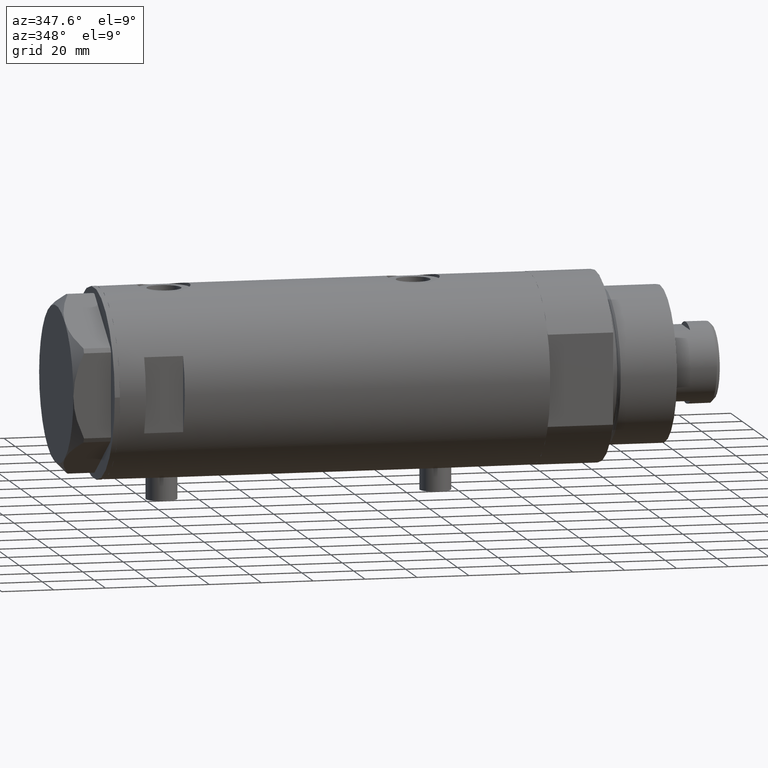
[diagram: clean part render]
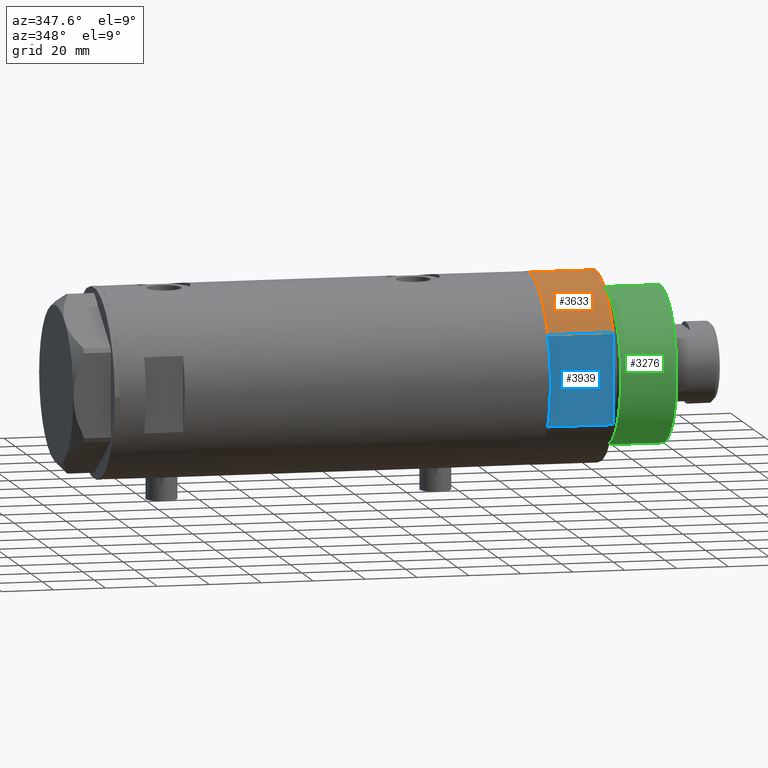
[diagram: same view with three faces highlighted in distinct colors, each labeled with its STEP entity id]
A machine part, auxiliary view with three faces highlighted in distinct colors.
Their STEP definitions:

[orange] entity #3633 — the highlighted cylindrical surface (partial cylindrical patch) has radius 36.5 mm, axis along (-1, -0, 0).
#20 = CARTESIAN_POINT ( 'NONE',  ( -17.55704986607943496, -32.00000000000000000, 0.000000000000000000 ) ) ;
#131 = AXIS2_PLACEMENT_3D ( 'NONE', #1479, #3342, #1557 ) ;
#202 = FACE_OUTER_BOUND ( 'NONE', #1318, .T. ) ;
#749 = ORIENTED_EDGE ( 'NONE', *, *, #1298, .F. ) ;
#751 = CARTESIAN_POINT ( 'NONE',  ( -36.50000000000000000, 0.000000000000000000, 0.000000000000000000 ) ) ;
#906 = VERTEX_POINT ( 'NONE', #751 ) ;
#1072 = ORIENTED_EDGE ( 'NONE', *, *, #2710, .T. ) ;
#1193 = CIRCLE ( 'NONE', #3001, 36.50000000000000000 ) ;
#1298 = EDGE_CURVE ( 'NONE', #3946, #3222, #1193, .T. ) ;
#1303 = VERTEX_POINT ( 'NONE', #20 ) ;
#1318 = EDGE_LOOP ( 'NONE', ( #749, #1072, #2810, #3900 ) ) ;
#1431 = DIRECTION ( 'NONE',  ( -0.000000000000000000, -0.000000000000000000, -1.000000000000000000 ) ) ;
#1479 = CARTESIAN_POINT ( 'NONE',  ( 0.000000000000000000, 0.000000000000000000, 25.19999999999999929 ) ) ;
#1497 = LINE ( 'NONE', #3602, #4313 ) ;
#1534 = DIRECTION ( 'NONE',  ( 0.000000000000000000, 0.000000000000000000, 1.000000000000000000 ) ) ;
#1557 = DIRECTION ( 'NONE',  ( -1.000000000000000000, 0.000000000000000000, 0.000000000000000000 ) ) ;
#1737 = DIRECTION ( 'NONE',  ( 0.000000000000000000, 0.000000000000000000, 1.000000000000000000 ) ) ;
#2078 = DIRECTION ( 'NONE',  ( -0.000000000000000000, -0.000000000000000000, 1.000000000000000000 ) ) ;
#2151 = CARTESIAN_POINT ( 'NONE',  ( -36.50000000000000000, 0.000000000000000000, 25.19999999999999929 ) ) ;
#2575 = AXIS2_PLACEMENT_3D ( 'NONE', #3701, #1534, #3075 ) ;
#2644 = CYLINDRICAL_SURFACE ( 'NONE', #131, 36.50000000000000000 ) ;
#2710 = EDGE_CURVE ( 'NONE', #3946, #906, #1497, .T. ) ;
#2810 = ORIENTED_EDGE ( 'NONE', *, *, #2868, .T. ) ;
#2868 = EDGE_CURVE ( 'NONE', #906, #1303, #3951, .T. ) ;
#3001 = AXIS2_PLACEMENT_3D ( 'NONE', #3802, #1737, #3123 ) ;
#3075 = DIRECTION ( 'NONE',  ( 1.000000000000000000, 0.000000000000000000, 0.000000000000000000 ) ) ;
#3123 = DIRECTION ( 'NONE',  ( 1.000000000000000000, 0.000000000000000000, 0.000000000000000000 ) ) ;
#3222 = VERTEX_POINT ( 'NONE', #3564 ) ;
#3342 = DIRECTION ( 'NONE',  ( -0.000000000000000000, -0.000000000000000000, -1.000000000000000000 ) ) ;
#3505 = CARTESIAN_POINT ( 'NONE',  ( -17.55704986607943141, -32.00000000000000000, 0.000000000000000000 ) ) ;
#3564 = CARTESIAN_POINT ( 'NONE',  ( -17.55704986607943496, -32.00000000000000000, 25.19999999999999929 ) ) ;
#3602 = CARTESIAN_POINT ( 'NONE',  ( -36.50000000000000000, 0.000000000000000000, 25.19999999999999929 ) ) ;
#3633 = ADVANCED_FACE ( 'NONE', ( #202 ), #2644, .T. ) ;
#3701 = CARTESIAN_POINT ( 'NONE',  ( 0.000000000000000000, 0.000000000000000000, 0.000000000000000000 ) ) ;
#3802 = CARTESIAN_POINT ( 'NONE',  ( 0.000000000000000000, 0.000000000000000000, 25.19999999999999929 ) ) ;
#3844 = LINE ( 'NONE', #3505, #4243 ) ;
#3900 = ORIENTED_EDGE ( 'NONE', *, *, #4372, .T. ) ;
#3946 = VERTEX_POINT ( 'NONE', #2151 ) ;
#3951 = CIRCLE ( 'NONE', #2575, 36.50000000000000000 ) ;
#4243 = VECTOR ( 'NONE', #2078, 1000.000000000000000 ) ;
#4313 = VECTOR ( 'NONE', #1431, 1000.000000000000000 ) ;
#4372 = EDGE_CURVE ( 'NONE', #1303, #3222, #3844, .T. ) ;

[blue] entity #3939 — the highlighted planar face has unit normal (-0, 1, 0).
#20 = CARTESIAN_POINT ( 'NONE',  ( -17.55704986607943496, -32.00000000000000000, 0.000000000000000000 ) ) ;
#75 = DIRECTION ( 'NONE',  ( -0.000000000000000000, 1.000000000000000000, 0.000000000000000000 ) ) ;
#117 = CARTESIAN_POINT ( 'NONE',  ( -17.55704986607943141, -32.00000000000000000, 0.000000000000000000 ) ) ;
#308 = LINE ( 'NONE', #1667, #4307 ) ;
#491 = AXIS2_PLACEMENT_3D ( 'NONE', #117, #75, #2511 ) ;
#493 = CARTESIAN_POINT ( 'NONE',  ( -17.55704986607943141, -32.00000000000000000, 0.000000000000000000 ) ) ;
#687 = LINE ( 'NONE', #2765, #3808 ) ;
#750 = ORIENTED_EDGE ( 'NONE', *, *, #1574, .F. ) ;
#916 = VERTEX_POINT ( 'NONE', #2762 ) ;
#986 = LINE ( 'NONE', #2107, #2862 ) ;
#1074 = DIRECTION ( 'NONE',  ( -1.000000000000000000, -0.000000000000000000, -0.000000000000000000 ) ) ;
#1152 = DIRECTION ( 'NONE',  ( -1.000000000000000000, -0.000000000000000000, -0.000000000000000000 ) ) ;
#1303 = VERTEX_POINT ( 'NONE', #20 ) ;
#1368 = ORIENTED_EDGE ( 'NONE', *, *, #3199, .F. ) ;
#1372 = VERTEX_POINT ( 'NONE', #3294 ) ;
#1574 = EDGE_CURVE ( 'NONE', #916, #1303, #308, .T. ) ;
#1667 = CARTESIAN_POINT ( 'NONE',  ( -17.55704986607943141, -32.00000000000000000, 0.000000000000000000 ) ) ;
#1902 = LINE ( 'NONE', #493, #2429 ) ;
#2030 = EDGE_CURVE ( 'NONE', #2079, #1372, #986, .T. ) ;
#2078 = DIRECTION ( 'NONE',  ( -0.000000000000000000, -0.000000000000000000, 1.000000000000000000 ) ) ;
#2079 = VERTEX_POINT ( 'NONE', #3492 ) ;
#2107 = CARTESIAN_POINT ( 'NONE',  ( 17.55704986607943141, -32.00000000000000000, 0.000000000000000000 ) ) ;
#2171 = FACE_OUTER_BOUND ( 'NONE', #2782, .T. ) ;
#2182 = ORIENTED_EDGE ( 'NONE', *, *, #2030, .T. ) ;
#2421 = DIRECTION ( 'NONE',  ( -0.000000000000000000, -0.000000000000000000, 1.000000000000000000 ) ) ;
#2429 = VECTOR ( 'NONE', #1152, 1000.000000000000000 ) ;
#2511 = DIRECTION ( 'NONE',  ( 0.000000000000000000, -0.000000000000000000, 1.000000000000000000 ) ) ;
#2600 = EDGE_CURVE ( 'NONE', #1372, #3222, #687, .T. ) ;
#2762 = CARTESIAN_POINT ( 'NONE',  ( 0.000000000000000000, -32.00000000000000000, 0.000000000000000000 ) ) ;
#2765 = CARTESIAN_POINT ( 'NONE',  ( -17.55704986607943141, -32.00000000000000000, 25.19999999999999929 ) ) ;
#2782 = EDGE_LOOP ( 'NONE', ( #3552, #2928, #750, #1368, #2182 ) ) ;
#2862 = VECTOR ( 'NONE', #2421, 1000.000000000000000 ) ;
#2928 = ORIENTED_EDGE ( 'NONE', *, *, #4372, .F. ) ;
#3199 = EDGE_CURVE ( 'NONE', #2079, #916, #1902, .T. ) ;
#3222 = VERTEX_POINT ( 'NONE', #3564 ) ;
#3294 = CARTESIAN_POINT ( 'NONE',  ( 17.55704986607943496, -32.00000000000000000, 25.19999999999999929 ) ) ;
#3492 = CARTESIAN_POINT ( 'NONE',  ( 17.55704986607943141, -32.00000000000000000, 0.000000000000000000 ) ) ;
#3505 = CARTESIAN_POINT ( 'NONE',  ( -17.55704986607943141, -32.00000000000000000, 0.000000000000000000 ) ) ;
#3552 = ORIENTED_EDGE ( 'NONE', *, *, #2600, .T. ) ;
#3564 = CARTESIAN_POINT ( 'NONE',  ( -17.55704986607943496, -32.00000000000000000, 25.19999999999999929 ) ) ;
#3808 = VECTOR ( 'NONE', #1074, 1000.000000000000000 ) ;
#3844 = LINE ( 'NONE', #3505, #4243 ) ;
#3848 = PLANE ( 'NONE',  #491 ) ;
#3939 = ADVANCED_FACE ( 'NONE', ( #2171 ), #3848, .F. ) ;
#4086 = DIRECTION ( 'NONE',  ( -1.000000000000000000, -0.000000000000000000, -0.000000000000000000 ) ) ;
#4243 = VECTOR ( 'NONE', #2078, 1000.000000000000000 ) ;
#4307 = VECTOR ( 'NONE', #4086, 1000.000000000000000 ) ;
#4372 = EDGE_CURVE ( 'NONE', #1303, #3222, #3844, .T. ) ;

[green] entity #3276 — the highlighted cylindrical surface (partial cylindrical patch) has radius 30 mm, axis along (-1, -0, 0).
#8 = EDGE_CURVE ( 'NONE', #805, #2240, #4065, .T. ) ;
#166 = AXIS2_PLACEMENT_3D ( 'NONE', #2757, #1393, #2456 ) ;
#233 = CARTESIAN_POINT ( 'NONE',  ( -30.00000000000000000, 0.000000000000000000, 50.19999999999999574 ) ) ;
#369 = EDGE_CURVE ( 'NONE', #805, #1229, #2654, .T. ) ;
#458 = EDGE_CURVE ( 'NONE', #1229, #2606, #3931, .T. ) ;
#572 = DIRECTION ( 'NONE',  ( -0.000000000000000000, -0.000000000000000000, 1.000000000000000000 ) ) ;
#589 = FACE_OUTER_BOUND ( 'NONE', #2283, .T. ) ;
#805 = VERTEX_POINT ( 'NONE', #3399 ) ;
#944 = CYLINDRICAL_SURFACE ( 'NONE', #3165, 30.00000000000000000 ) ;
#1229 = VERTEX_POINT ( 'NONE', #4484 ) ;
#1295 = DIRECTION ( 'NONE',  ( 1.000000000000000000, 0.000000000000000000, 0.000000000000000000 ) ) ;
#1343 = DIRECTION ( 'NONE',  ( -0.000000000000000000, -0.000000000000000000, -1.000000000000000000 ) ) ;
#1381 = ORIENTED_EDGE ( 'NONE', *, *, #8, .F. ) ;
#1393 = DIRECTION ( 'NONE',  ( 0.000000000000000000, 0.000000000000000000, 1.000000000000000000 ) ) ;
#1452 = CARTESIAN_POINT ( 'NONE',  ( 30.00000000000000000, 3.673940397442058389E-15, 28.57384048104054486 ) ) ;
#1455 = CARTESIAN_POINT ( 'NONE',  ( 30.00000000000000000, 3.673940397442058389E-15, 50.19999999999999574 ) ) ;
#1609 = VECTOR ( 'NONE', #2267, 1000.000000000000000 ) ;
#1641 = EDGE_CURVE ( 'NONE', #2240, #2606, #4183, .T. ) ;
#2129 = VECTOR ( 'NONE', #3797, 1000.000000000000000 ) ;
#2240 = VERTEX_POINT ( 'NONE', #1455 ) ;
#2267 = DIRECTION ( 'NONE',  ( -0.000000000000000000, -0.000000000000000000, -1.000000000000000000 ) ) ;
#2283 = EDGE_LOOP ( 'NONE', ( #4103, #1381, #3798, #2831 ) ) ;
#2404 = CARTESIAN_POINT ( 'NONE',  ( 30.00000000000000000, 3.673940397442058389E-15, 50.19999999999999574 ) ) ;
#2456 = DIRECTION ( 'NONE',  ( 1.000000000000000000, 0.000000000000000000, 0.000000000000000000 ) ) ;
#2606 = VERTEX_POINT ( 'NONE', #1452 ) ;
#2654 = LINE ( 'NONE', #233, #1609 ) ;
#2701 = AXIS2_PLACEMENT_3D ( 'NONE', #3674, #572, #1295 ) ;
#2757 = CARTESIAN_POINT ( 'NONE',  ( 0.000000000000000000, 0.000000000000000000, 50.19999999999999574 ) ) ;
#2831 = ORIENTED_EDGE ( 'NONE', *, *, #458, .T. ) ;
#3165 = AXIS2_PLACEMENT_3D ( 'NONE', #4451, #1343, #3650 ) ;
#3276 = ADVANCED_FACE ( 'NONE', ( #589 ), #944, .T. ) ;
#3399 = CARTESIAN_POINT ( 'NONE',  ( -30.00000000000000000, 0.000000000000000000, 50.19999999999999574 ) ) ;
#3650 = DIRECTION ( 'NONE',  ( -1.000000000000000000, 0.000000000000000000, 0.000000000000000000 ) ) ;
#3674 = CARTESIAN_POINT ( 'NONE',  ( 0.000000000000000000, 0.000000000000000000, 28.57384048104054486 ) ) ;
#3797 = DIRECTION ( 'NONE',  ( -0.000000000000000000, -0.000000000000000000, -1.000000000000000000 ) ) ;
#3798 = ORIENTED_EDGE ( 'NONE', *, *, #369, .T. ) ;
#3931 = CIRCLE ( 'NONE', #2701, 30.00000000000000000 ) ;
#4065 = CIRCLE ( 'NONE', #166, 30.00000000000000000 ) ;
#4103 = ORIENTED_EDGE ( 'NONE', *, *, #1641, .F. ) ;
#4183 = LINE ( 'NONE', #2404, #2129 ) ;
#4451 = CARTESIAN_POINT ( 'NONE',  ( 0.000000000000000000, 0.000000000000000000, 50.19999999999999574 ) ) ;
#4484 = CARTESIAN_POINT ( 'NONE',  ( -30.00000000000000000, 0.000000000000000000, 28.57384048104054486 ) ) ;